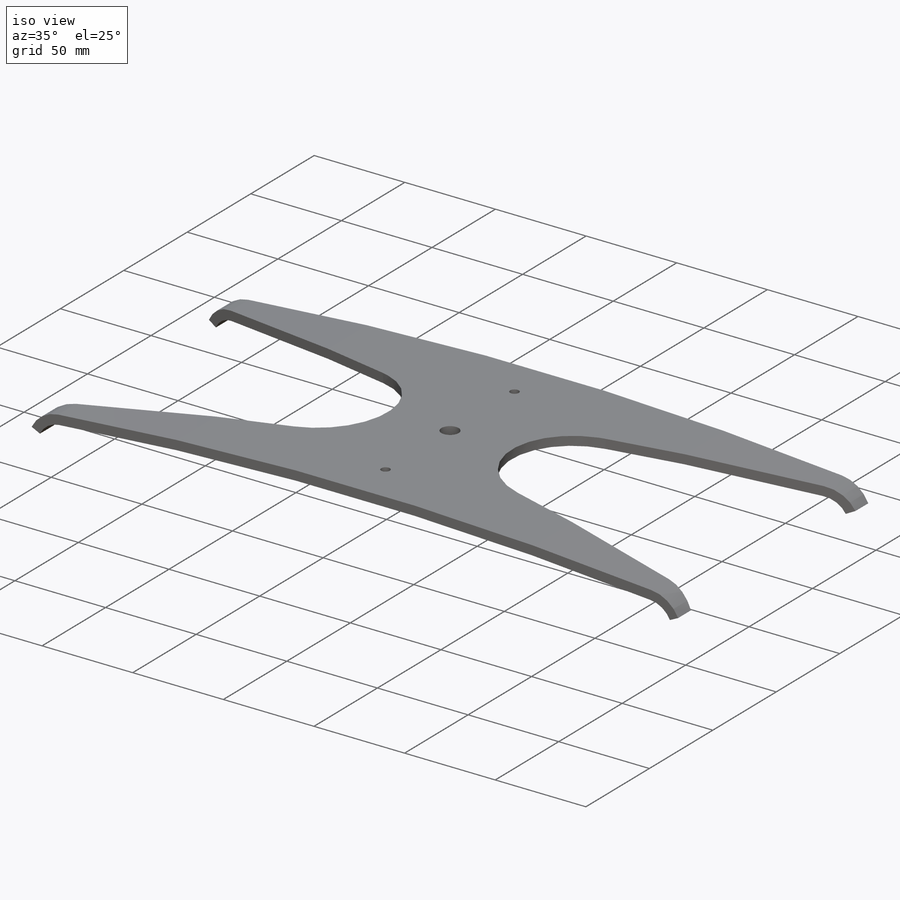
[diagram: iso view]
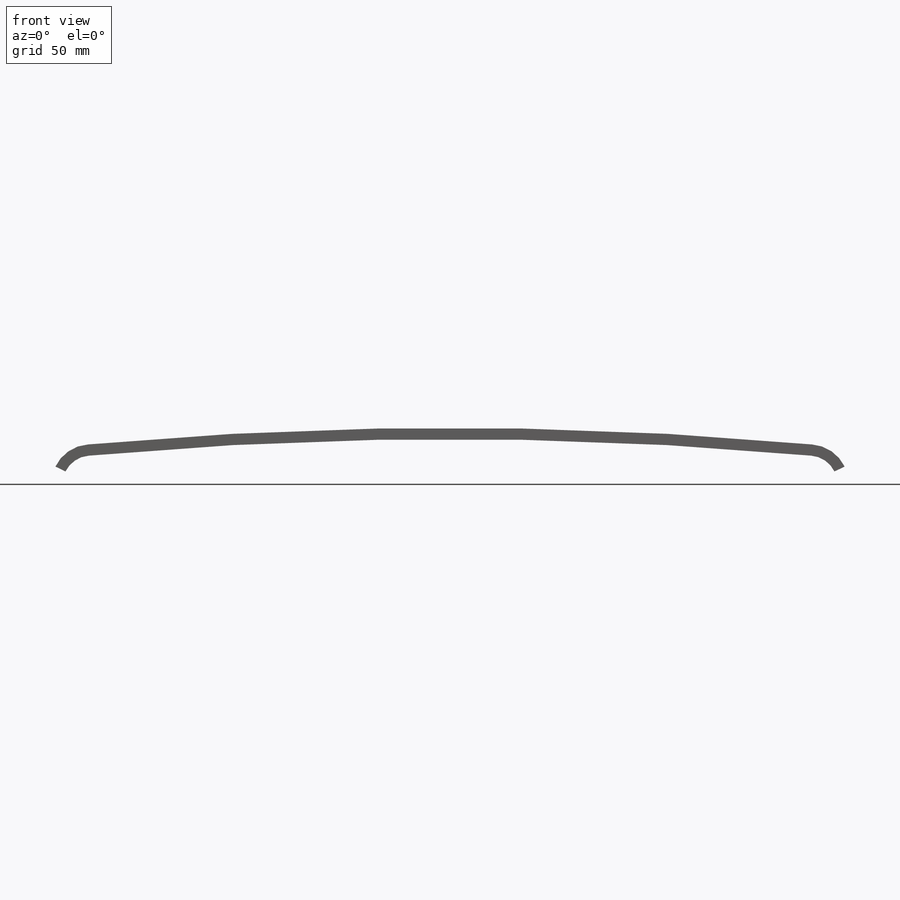
[diagram: front view]
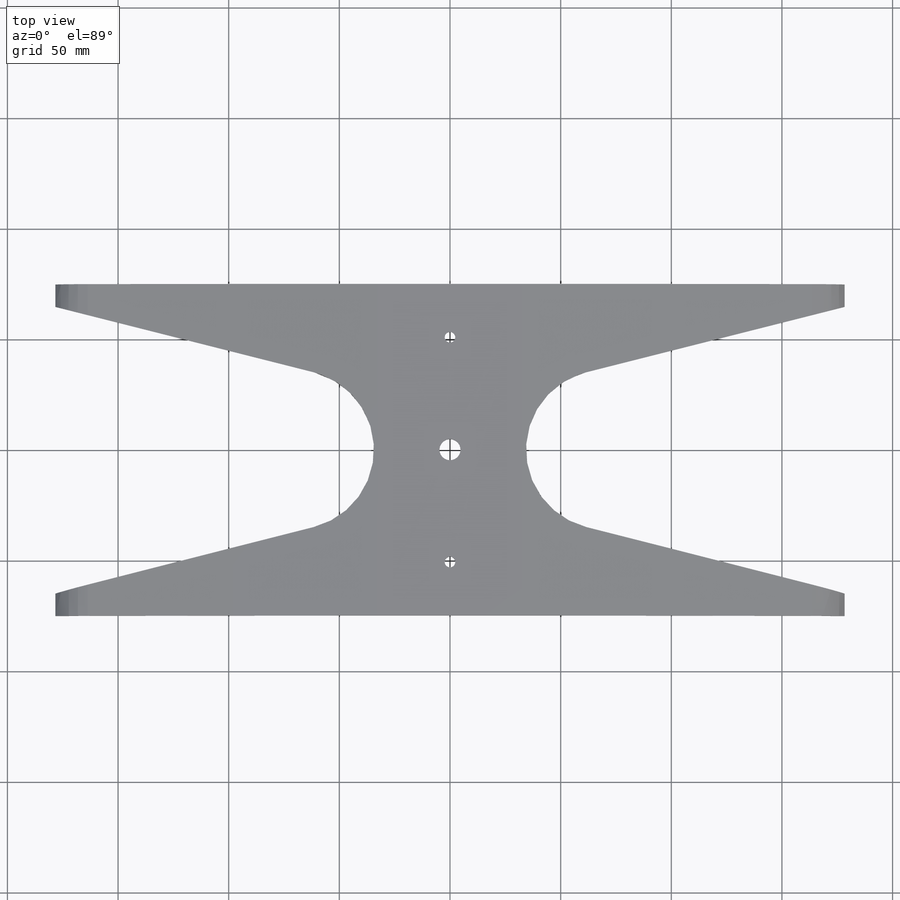
[diagram: top view]
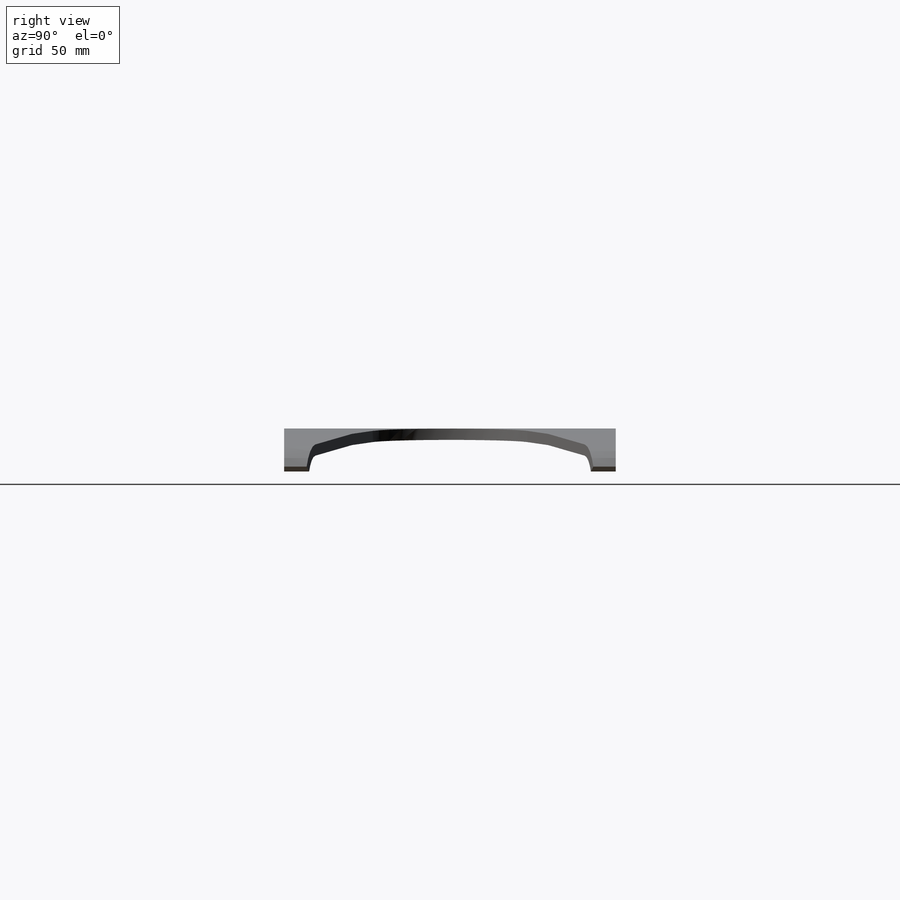
[diagram: right view]
SOLIDWORKS PART (.sldprt)
format: sldprt  version: not decoded by parser v0  size: 549,376 bytes
history: native  units: mm
features: sketch x7, extrude x2, hole x2, material x1, cut_extrude x1, mirror x1 (+11 scaffold rows collapsed)
feature tree (25):
  scaffold x11  (default folders/planes/origin — collapsed)
  material  "MARAGING STEEL C250"
  sketch  "Sketch6"  dims[c1.D1=21.59mm c1.D2=60.325mm c2.D1=63.5mm c2.D2=889.0mm c2.D3=917.575mm c2.D4=895.985mm c3.D2=904.24mm c3.D5=901.7mm c3.D6=906.78mm c4.D2=~1788.74878mm c4.D4=898.525mm c4.D7=917.575mm c4.D3=917.575mm c4.D9=2.54mm c4.D10=7.62mm c4.D1=17.78mm c5.D2=75.438mm c5.D1=5.08mm c5.D5=8.255mm c5.D6=8.255mm c5.D7=152.4mm c6.D1=304.8mm c6.D5=5.08mm c7.D1=~313.195127mm c7.D6=~31.158395mm c8.D1=~73.03881mm c8.D6=330.2mm c8.D7=6.35mm c8.D8=7.62mm c8.D10=3.302mm c8.D11=~174.532925mm c9.D10=1.27mm c9.D11=~158.568571mm c10.D10=1.27mm c10.D11=~174.532925mm c10.D6=330.2mm c11.D10=~108.162088mm c11.D11=~24.260077mm c11.D6=~329.349592mm c11.D12=~329.349592mm c12.D6=1.0mm]
  extrude  "Boss-Extrude1"  Depth=149.86mm
  sketch  "Sketch17"  dims[D1=12.7mm D2=~1047.197551mm]
  extrude  "Boss-Extrude2"  [1 undecoded]
  sketch  "Sketch11"  dims[c1.D1=12.7mm c1.D2=2.54mm c1.D3=10.16mm c1.D4=~8.032185mm c2.D2=2.54mm c2.D1=34.29mm]
  cut_extrude  "Cut-Extrude1"  [1 undecoded]
  mirror  "Mirror1"
  hole  "3/16 (0.1875) Diameter Hole1"  Diameter=4.7625mm Depth=5.08mm
  sketch  "Sketch13"  dims[D1=101.6mm]
  sketch  "Sketch12"  dims[hole-wizard template sketch: 40 standard entries collapsed; hole parameters kept: c6.Thru Hole Dia.=4.7625mm c6.Thru Hole Depth=5.08mm c6.Near C'Sink Dia.=8.128mm c6.Near C'Sink Angle=~1431.169987mm]  [1 undecoded]
  hole  "3/8 (0.375) Diameter Hole1"  Diameter=9.525mm Depth=5.08mm
  sketch  "Sketch16"  dims[D1=101.6mm]
  sketch  "Sketch15"  dims[hole-wizard template sketch: 44 standard entries collapsed; hole parameters kept: c7.Thru Hole Dia.=9.525mm c7.Thru Hole Depth=5.08mm]
decode coverage: 10 of 13 modeling features carry decoded parameters
note: ~ marks probable driven/reference dimensions
note: 2 parameter values undecoded
note: suppression state not decoded; provenance and decode notes live in map.json
note: 1 required parameter value undecoded (feature->parameter linkage not recoverable at this tier; creation-order binding heuristic only, values carry confidence <= 0.55)
